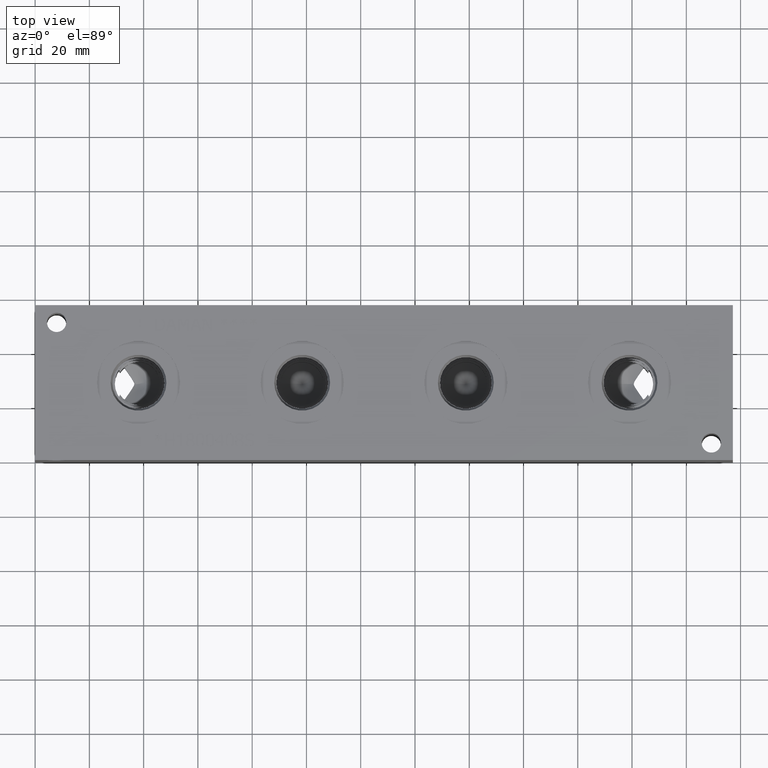
[diagram: clean part render]
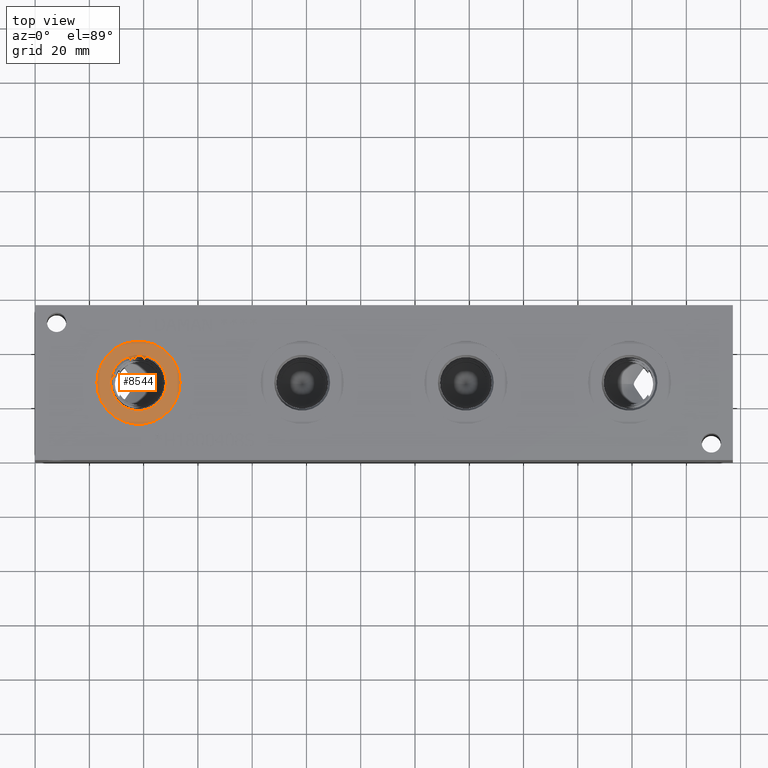
[diagram: same view with one face highlighted and labeled with its STEP entity id]
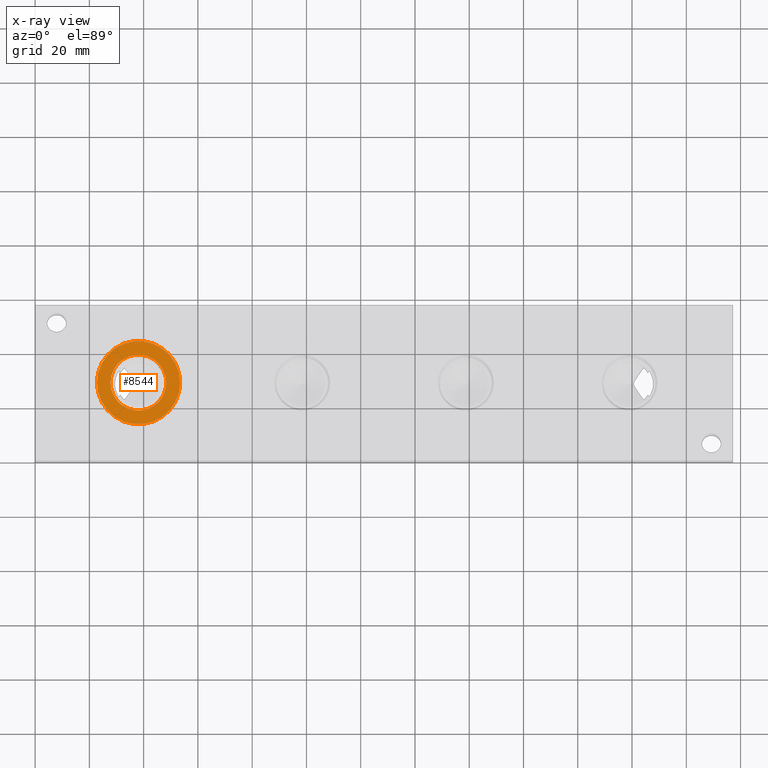
[diagram: x-ray of the same camera — body ghosted, the highlighted face saturated]
A machine part, top view. The second image highlights one B-rep face of the part: STEP entity #8544.
The next image is the same camera in x-ray: the body ghosted, the highlighted face saturated — about 0% of this face is hidden behind the body in this view.
In plain terms, the highlighted planar face has unit normal (0, 0, -1).
Its self-contained STEP definition (entity closure, byte-faithful):
#278=CIRCLE('',#9063,15.3162);
#279=CIRCLE('',#9064,15.3162);
#280=CIRCLE('',#9066,10.2997);
#281=CIRCLE('',#9067,10.2997);
#373=FACE_BOUND('',#1529,.T.);
#620=PLANE('',#9065);
#1039=FACE_OUTER_BOUND('',#1528,.T.);
#1528=EDGE_LOOP('',(#7557,#7558));
#1529=EDGE_LOOP('',(#7559,#7560));
#4085=VERTEX_POINT('',#14841);
#4086=VERTEX_POINT('',#14843);
#4087=VERTEX_POINT('',#14847);
#4088=VERTEX_POINT('',#14848);
#5262=EDGE_CURVE('',#4085,#4086,#278,.T.);
#5263=EDGE_CURVE('',#4086,#4085,#279,.T.);
#5264=EDGE_CURVE('',#4087,#4088,#280,.T.);
#5265=EDGE_CURVE('',#4088,#4087,#281,.T.);
#7557=ORIENTED_EDGE('',*,*,#5263,.F.);
#7558=ORIENTED_EDGE('',*,*,#5262,.F.);
#7559=ORIENTED_EDGE('',*,*,#5264,.T.);
#7560=ORIENTED_EDGE('',*,*,#5265,.T.);
#8544=ADVANCED_FACE('',(#1039,#373),#620,.F.);
#9063=AXIS2_PLACEMENT_3D('',#14844,#10818,#10819);
#9064=AXIS2_PLACEMENT_3D('',#14845,#10820,#10821);
#9065=AXIS2_PLACEMENT_3D('',#14846,#10822,#10823);
#9066=AXIS2_PLACEMENT_3D('',#14849,#10824,#10825);
#9067=AXIS2_PLACEMENT_3D('',#14850,#10826,#10827);
#10818=DIRECTION('center_axis',(0.,0.,-1.));
#10819=DIRECTION('ref_axis',(1.,0.,0.));
#10820=DIRECTION('center_axis',(0.,0.,-1.));
#10821=DIRECTION('ref_axis',(1.,0.,0.));
#10822=DIRECTION('center_axis',(0.,0.,-1.));
#10823=DIRECTION('ref_axis',(-1.,0.,0.));
#10824=DIRECTION('center_axis',(0.,0.,-1.));
#10825=DIRECTION('ref_axis',(1.,0.,0.));
#10826=DIRECTION('center_axis',(0.,0.,-1.));
#10827=DIRECTION('ref_axis',(1.,0.,0.));
#14841=CARTESIAN_POINT('',(22.7838,28.575,56.3626));
#14843=CARTESIAN_POINT('',(53.4162,28.575,56.3626));
#14844=CARTESIAN_POINT('Origin',(38.1,28.575,56.3626));
#14845=CARTESIAN_POINT('Origin',(38.1,28.575,56.3626));
#14846=CARTESIAN_POINT('Origin',(48.3997,28.575,56.3626));
#14847=CARTESIAN_POINT('',(48.3997,28.575,56.3626));
#14848=CARTESIAN_POINT('',(27.8003,28.575,56.3626));
#14849=CARTESIAN_POINT('Origin',(38.1,28.575,56.3626));
#14850=CARTESIAN_POINT('Origin',(38.1,28.575,56.3626));